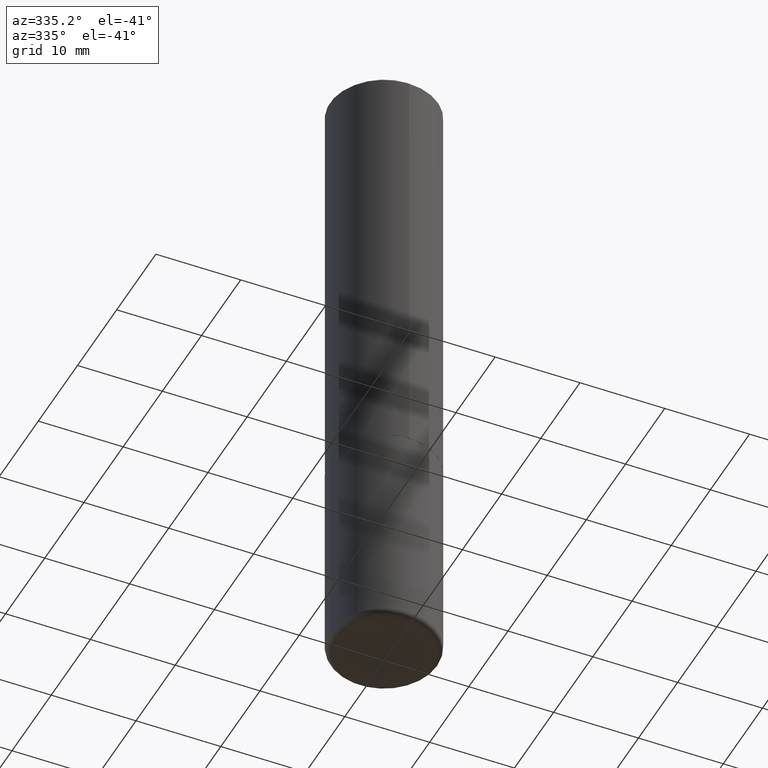
[diagram: clean part render]
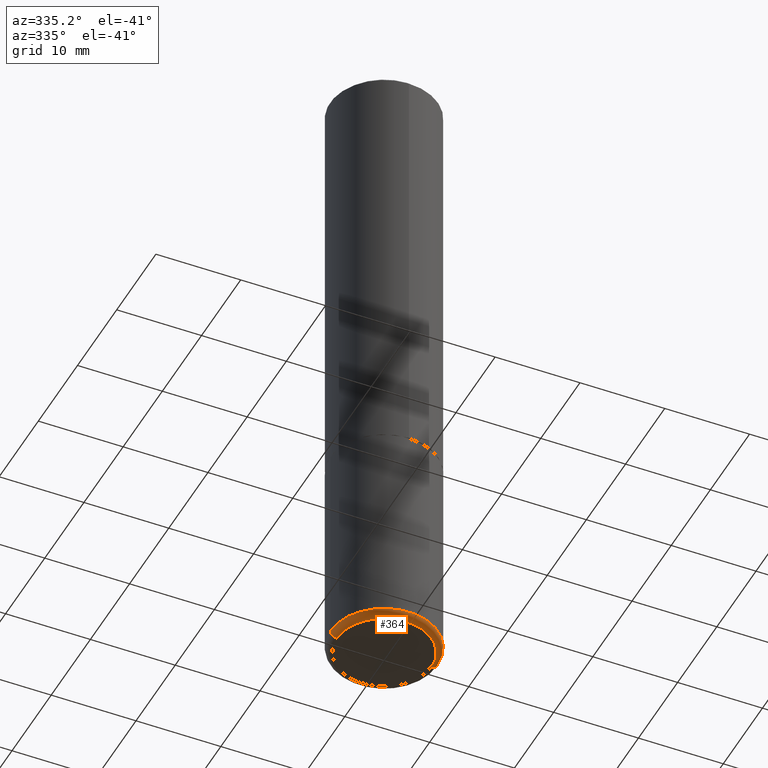
[diagram: same view with one face highlighted and labeled with its STEP entity id]
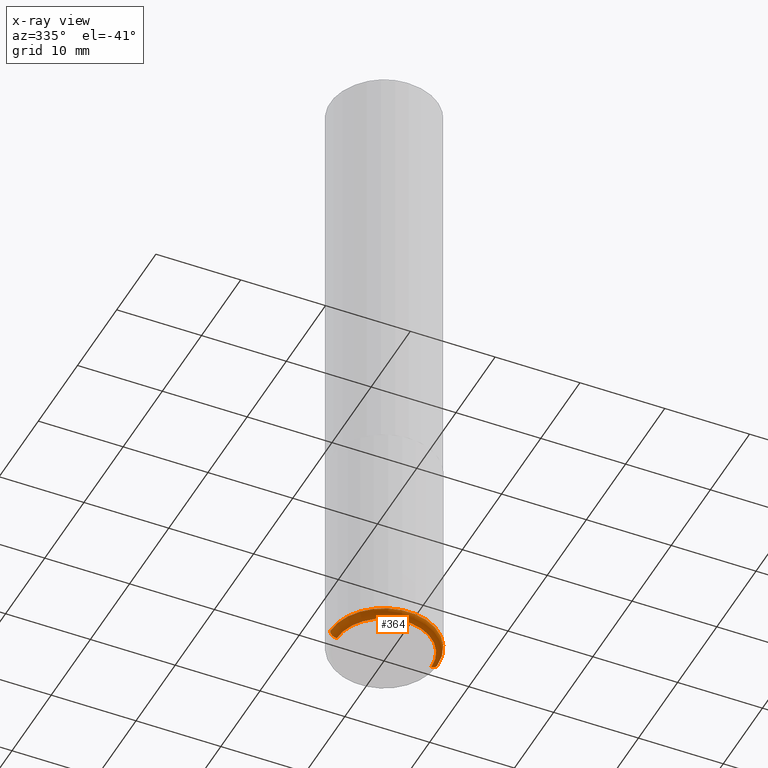
[diagram: x-ray of the same camera — body ghosted, the highlighted face saturated]
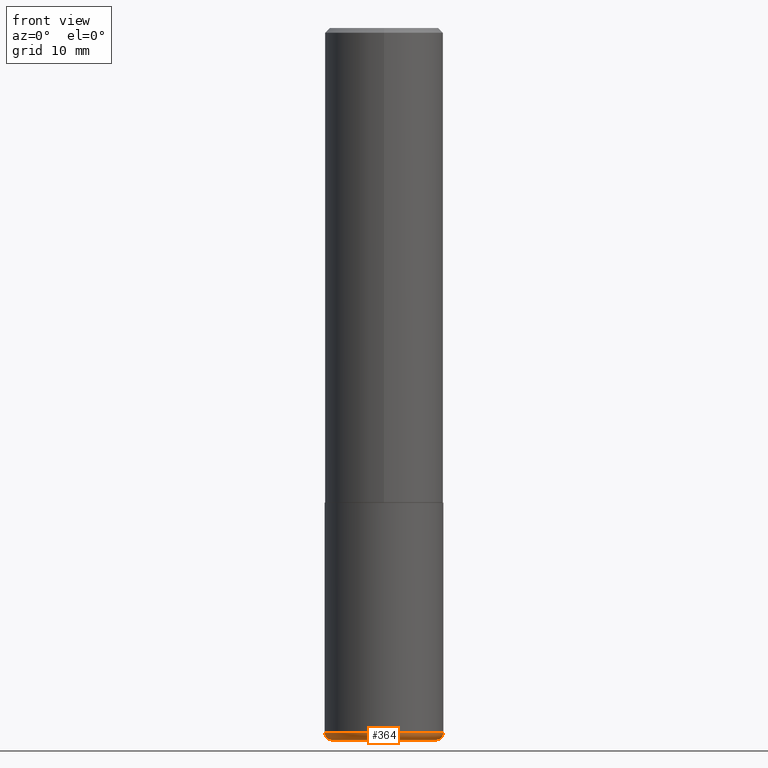
[diagram: same view with one face highlighted and labeled with its STEP entity id]
A machine part, auxiliary view. The second image highlights one B-rep face of the part: STEP entity #364.
The next image is the same camera in x-ray: the body ghosted, the highlighted face saturated — about 0% of this face is hidden behind the body in this view.
A second angle (front view) of the same face is appended — the face is thin or edge-on in the first view.
In plain terms, the highlighted toroidal blend (fillet) surface has major radius 5.588 mm and minor (blend) radius 0.762 mm.
Its self-contained STEP definition (entity closure, byte-faithful):
#9 = ORIENTED_EDGE ( 'NONE', *, *, #245, .T. ) ;
#27 = DIRECTION ( 'NONE',  ( 1.000000000000000000, -6.982962677686262766E-15, 4.883557194083111780E-29 ) ) ;
#30 = VERTEX_POINT ( 'NONE', #388 ) ;
#31 = AXIS2_PLACEMENT_3D ( 'NONE', #307, #152, #27 ) ;
#32 = CARTESIAN_POINT ( 'NONE',  ( -0.2200000000000000011, -8.806505557691921187E-15, -2.970000000000000195 ) ) ;
#37 = ORIENTED_EDGE ( 'NONE', *, *, #243, .T. ) ;
#58 = CARTESIAN_POINT ( 'NONE',  ( -0.2200000000000000011, -8.752296367410555115E-15, -2.999999999999999556 ) ) ;
#59 = CIRCLE ( 'NONE', #325, 0.2500000000000000000 ) ;
#62 = DIRECTION ( 'NONE',  ( 1.000000000000000000, -6.982962677686269866E-15, 0.000000000000000000 ) ) ;
#63 = DIRECTION ( 'NONE',  ( 7.105427357601001859E-15, 1.000000000000000000, -3.491481338843145583E-15 ) ) ;
#67 = CARTESIAN_POINT ( 'NONE',  ( 0.2200000000000000011, -1.201069580562041471E-14, -2.999999999999999556 ) ) ;
#74 = CIRCLE ( 'NONE', #86, 0.02999999999999971440 ) ;
#86 = AXIS2_PLACEMENT_3D ( 'NONE', #32, #63, #337 ) ;
#92 = CIRCLE ( 'NONE', #202, 0.02999999999999971440 ) ;
#112 = AXIS2_PLACEMENT_3D ( 'NONE', #177, #394, #154 ) ;
#122 = DIRECTION ( 'NONE',  ( -2.445468806185136597E-29, 3.491481338843145583E-15, 1.000000000000000000 ) ) ;
#130 = EDGE_CURVE ( 'NONE', #315, #30, #59, .T. ) ;
#146 = CARTESIAN_POINT ( 'NONE',  ( 0.2200000000000000011, -1.190595136545512292E-14, -2.970000000000000195 ) ) ;
#151 = FACE_OUTER_BOUND ( 'NONE', #380, .T. ) ;
#152 = DIRECTION ( 'NONE',  ( -2.445468806185136597E-29, 3.491481338843145583E-15, 1.000000000000000000 ) ) ;
#154 = DIRECTION ( 'NONE',  ( 1.000000000000000000, -6.982962677686270655E-15, 0.000000000000000000 ) ) ;
#177 = CARTESIAN_POINT ( 'NONE',  ( 7.336406418555408669E-29, -1.047444401652943478E-14, -2.999999999999999556 ) ) ;
#200 = VERTEX_POINT ( 'NONE', #58 ) ;
#202 = AXIS2_PLACEMENT_3D ( 'NONE', #146, #336, #62 ) ;
#227 = TOROIDAL_SURFACE ( 'NONE', #31, 0.2200000000000000011, 0.02999999999999969705 ) ;
#238 = DIRECTION ( 'NONE',  ( 1.000000000000000000, -6.982962677686270655E-15, 0.000000000000000000 ) ) ;
#243 = EDGE_CURVE ( 'NONE', #256, #30, #92, .T. ) ;
#244 = CARTESIAN_POINT ( 'NONE',  ( 7.263042354369856275E-29, -1.036969957636414298E-14, -2.970000000000000195 ) ) ;
#245 = EDGE_CURVE ( 'NONE', #200, #256, #314, .T. ) ;
#256 = VERTEX_POINT ( 'NONE', #67 ) ;
#257 = CARTESIAN_POINT ( 'NONE',  ( -0.2499999999999998612, -8.593342736963892519E-15, -2.970000000000000195 ) ) ;
#268 = ORIENTED_EDGE ( 'NONE', *, *, #130, .F. ) ;
#307 = CARTESIAN_POINT ( 'NONE',  ( 7.263042354369856275E-29, -1.036969957636414298E-14, -2.970000000000000195 ) ) ;
#314 = CIRCLE ( 'NONE', #112, 0.2200000000000000011 ) ;
#315 = VERTEX_POINT ( 'NONE', #257 ) ;
#321 = ORIENTED_EDGE ( 'NONE', *, *, #373, .F. ) ;
#325 = AXIS2_PLACEMENT_3D ( 'NONE', #244, #122, #238 ) ;
#336 = DIRECTION ( 'NONE',  ( -6.982962677686266711E-15, -1.000000000000000000, 3.491481338843145583E-15 ) ) ;
#337 = DIRECTION ( 'NONE',  ( -1.000000000000000000, 7.105427357600993970E-15, 0.000000000000000000 ) ) ;
#364 = ADVANCED_FACE ( 'NONE', ( #151 ), #227, .T. ) ;
#373 = EDGE_CURVE ( 'NONE', #200, #315, #74, .T. ) ;
#380 = EDGE_LOOP ( 'NONE', ( #321, #9, #37, #268 ) ) ;
#388 = CARTESIAN_POINT ( 'NONE',  ( 0.2499999999999998612, -1.211544024578571124E-14, -2.970000000000000195 ) ) ;
#394 = DIRECTION ( 'NONE',  ( -2.445468806185136597E-29, 3.491481338843145583E-15, 1.000000000000000000 ) ) ;